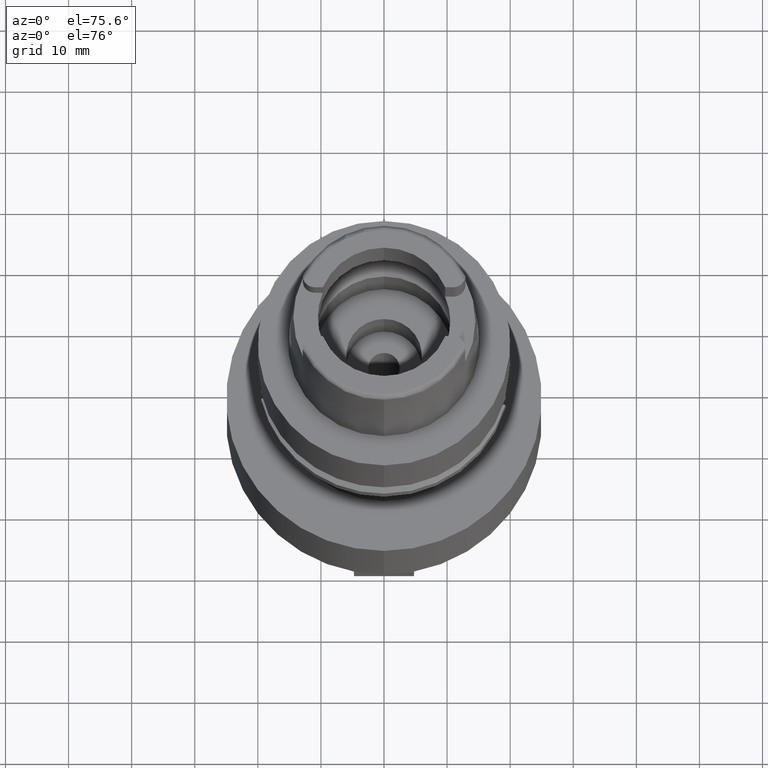
[diagram: clean part render]
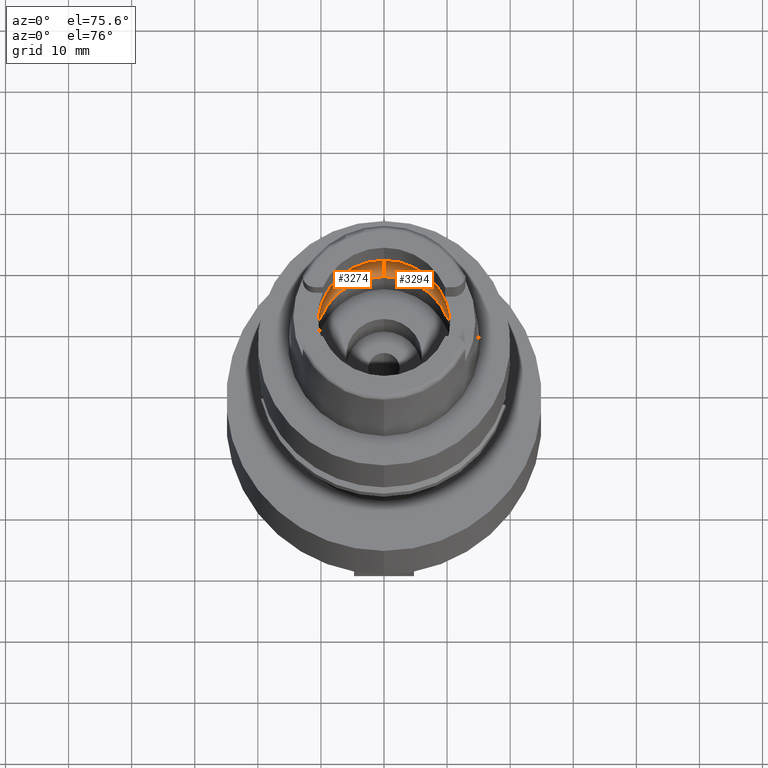
[diagram: same view with one multi-face feature highlighted, each face labeled with its STEP entity id]
A machine part, auxiliary view. The highlighted faces form ONE feature: a constant-radius fillet chain: 2 tangent blend faces with common blend radius 5 mm. The faces share edges in the B-rep.
Their STEP definitions:
[1] entity #3294 (Torus):
#590=CARTESIAN_POINT('',(0.E0,-7.75E0,3.933312163513E0));
#591=DIRECTION('',(-1.E0,0.E0,0.E0));
#592=DIRECTION('',(0.E0,-6.3E-1,-7.765951326142E-1));
#593=AXIS2_PLACEMENT_3D('',#590,#591,#592);
#606=CARTESIAN_POINT('',(1.274455357708E1,0.E0,3.7E0));
#607=CARTESIAN_POINT('',(1.274455357708E1,-1.164901899716E-1,3.7E0));
#608=CARTESIAN_POINT('',(1.274221290005E1,-3.492192328274E-1,3.717717317538E0));
#609=CARTESIAN_POINT('',(1.273125743228E1,-6.899600802084E-1,3.796706942599E0));
#610=CARTESIAN_POINT('',(1.271822602488E1,-9.055746597919E-1,3.882625582952E0));
#611=CARTESIAN_POINT('',(1.270998420980E1,-1.009356917308E0,3.933312163513E0));
#616=CARTESIAN_POINT('',(0.E0,0.E0,3.933312163513E0));
#617=DIRECTION('',(0.E0,0.E0,-1.E0));
#618=DIRECTION('',(9.968615066513E-1,-7.916524841634E-2,0.E0));
#619=AXIS2_PLACEMENT_3D('',#616,#617,#618);
#624=CARTESIAN_POINT('',(0.E0,0.E0,5.033650044217E-2));
#625=DIRECTION('',(0.E0,0.E0,1.E0));
#626=DIRECTION('',(0.E0,-1.E0,0.E0));
#627=AXIS2_PLACEMENT_3D('',#624,#625,#626);
#632=CARTESIAN_POINT('',(0.E0,7.75E0,3.933312163513E0));
#633=DIRECTION('',(1.E0,0.E0,0.E0));
#634=DIRECTION('',(0.E0,6.3E-1,-7.765951326142E-1));
#635=AXIS2_PLACEMENT_3D('',#632,#633,#634);
#640=CARTESIAN_POINT('',(0.E0,0.E0,3.933312163513E0));
#641=DIRECTION('',(0.E0,0.E0,-1.E0));
#642=DIRECTION('',(0.E0,1.E0,0.E0));
#643=AXIS2_PLACEMENT_3D('',#640,#641,#642);
#648=CARTESIAN_POINT('',(1.270998420980E1,1.009356917308E0,3.933312163513E0));
#649=CARTESIAN_POINT('',(1.271822610189E1,9.055736900758E-1,3.882625109349E0));
#650=CARTESIAN_POINT('',(1.273125753795E1,6.899576788429E-1,3.796706207139E0));
#651=CARTESIAN_POINT('',(1.274221290142E1,3.492185334599E-1,3.717717296960E0));
#652=CARTESIAN_POINT('',(1.274455357708E1,1.164899040263E-1,3.7E0));
#653=CARTESIAN_POINT('',(1.274455357708E1,0.E0,3.7E0));
#665=CARTESIAN_POINT('',(1.270998420980E1,-1.009356917308E0,3.933312163513E0));
#694=CARTESIAN_POINT('',(1.270998420980E1,1.009356917308E0,3.933312163513E0));
#2603=CARTESIAN_POINT('',(0.E0,-1.275E1,3.933312163513E0));
#2604=VERTEX_POINT('',#2603);
#2605=CARTESIAN_POINT('',(0.E0,1.275E1,3.933312163513E0));
#2606=VERTEX_POINT('',#2605);
#2611=VERTEX_POINT('',#665);
#2613=VERTEX_POINT('',#606);
#2614=VERTEX_POINT('',#694);
#2615=CARTESIAN_POINT('',(0.E0,1.09E1,5.033650044218E-2));
#2616=VERTEX_POINT('',#2615);
#2617=CARTESIAN_POINT('',(0.E0,-1.09E1,5.033650044217E-2));
#2618=VERTEX_POINT('',#2617);
#3275=CARTESIAN_POINT('',(0.E0,0.E0,3.933312163513E0));
#3276=DIRECTION('',(0.E0,0.E0,1.E0));
#3277=DIRECTION('',(0.E0,1.E0,0.E0));
#3278=AXIS2_PLACEMENT_3D('',#3275,#3276,#3277);
#3279=TOROIDAL_SURFACE('',#3278,7.75E0,5.E0);
#3281=ORIENTED_EDGE('',*,*,#3280,.T.);
#3283=ORIENTED_EDGE('',*,*,#3282,.T.);
#3284=ORIENTED_EDGE('',*,*,#3269,.F.);
#3286=ORIENTED_EDGE('',*,*,#3285,.T.);
#3287=ORIENTED_EDGE('',*,*,#3265,.T.);
#3289=ORIENTED_EDGE('',*,*,#3288,.T.);
#3291=ORIENTED_EDGE('',*,*,#3290,.T.);
#3292=EDGE_LOOP('',(#3281,#3283,#3284,#3286,#3287,#3289,#3291));
#3293=FACE_OUTER_BOUND('',#3292,.F.);
#594=CIRCLE('',#593,5.E0);
#612=B_SPLINE_CURVE_WITH_KNOTS('',3,(#606,#607,#608,#609,#610,#611),
.UNSPECIFIED.,.F.,.F.,(4,1,1,4),(0.E0,3.333333333333E-1,6.666666666667E-1,1.E0),
.UNSPECIFIED.);
#620=CIRCLE('',#619,1.275E1);
#628=CIRCLE('',#627,1.09E1);
#636=CIRCLE('',#635,5.E0);
#644=CIRCLE('',#643,1.275E1);
#654=B_SPLINE_CURVE_WITH_KNOTS('',3,(#648,#649,#650,#651,#652,#653),
.UNSPECIFIED.,.F.,.F.,(4,1,1,4),(0.E0,3.333333333333E-1,6.666666666667E-1,1.E0),
.UNSPECIFIED.);
#3265=EDGE_CURVE('',#2616,#2606,#636,.T.);
#3269=EDGE_CURVE('',#2618,#2604,#594,.T.);
#3280=EDGE_CURVE('',#2613,#2611,#612,.T.);
#3282=EDGE_CURVE('',#2611,#2604,#620,.T.);
#3285=EDGE_CURVE('',#2618,#2616,#628,.T.);
#3288=EDGE_CURVE('',#2606,#2614,#644,.T.);
#3290=EDGE_CURVE('',#2614,#2613,#654,.T.);
#3294=ADVANCED_FACE('',(#3293),#3279,.F.);
[2] entity #3274 (Torus):
#511=CARTESIAN_POINT('',(-1.270998420980E1,-1.009356917308E0,3.933312163513E0));
#554=CARTESIAN_POINT('',(-1.270998420980E1,-1.009356917308E0,3.933312163513E0));
#555=CARTESIAN_POINT('',(-1.271822604554E1,-9.055743997280E-1,
3.882625455939E0));
#556=CARTESIAN_POINT('',(-1.273125746366E1,-6.899594359199E-1,
3.796706725424E0));
#557=CARTESIAN_POINT('',(-1.274221291167E1,-3.492185594748E-1,
3.717717229425E0));
#558=CARTESIAN_POINT('',(-1.274455357708E1,-1.164899004163E-1,3.7E0));
#559=CARTESIAN_POINT('',(-1.274455357708E1,0.E0,3.7E0));
#564=CARTESIAN_POINT('',(-1.274455357708E1,0.E0,3.7E0));
#565=CARTESIAN_POINT('',(-1.274455357708E1,1.164901918602E-1,3.7E0));
#566=CARTESIAN_POINT('',(-1.274221288988E1,3.492192028097E-1,3.717717384548E0));
#567=CARTESIAN_POINT('',(-1.273125750676E1,6.899583193256E-1,3.796706423029E0));
#568=CARTESIAN_POINT('',(-1.271822608136E1,9.055739486035E-1,3.882625235613E0));
#569=CARTESIAN_POINT('',(-1.270998420980E1,1.009356917308E0,3.933312163513E0));
#574=CARTESIAN_POINT('',(0.E0,0.E0,3.933312163513E0));
#575=DIRECTION('',(0.E0,0.E0,-1.E0));
#576=DIRECTION('',(-9.968615066513E-1,7.916524841634E-2,0.E0));
#577=AXIS2_PLACEMENT_3D('',#574,#575,#576);
#582=CARTESIAN_POINT('',(0.E0,0.E0,5.033650044217E-2));
#583=DIRECTION('',(0.E0,0.E0,1.E0));
#584=DIRECTION('',(0.E0,1.E0,0.E0));
#585=AXIS2_PLACEMENT_3D('',#582,#583,#584);
#590=CARTESIAN_POINT('',(0.E0,-7.75E0,3.933312163513E0));
#591=DIRECTION('',(-1.E0,0.E0,0.E0));
#592=DIRECTION('',(0.E0,-6.3E-1,-7.765951326142E-1));
#593=AXIS2_PLACEMENT_3D('',#590,#591,#592);
#598=CARTESIAN_POINT('',(0.E0,0.E0,3.933312163513E0));
#599=DIRECTION('',(0.E0,0.E0,-1.E0));
#600=DIRECTION('',(0.E0,-1.E0,0.E0));
#601=AXIS2_PLACEMENT_3D('',#598,#599,#600);
#632=CARTESIAN_POINT('',(0.E0,7.75E0,3.933312163513E0));
#633=DIRECTION('',(1.E0,0.E0,0.E0));
#634=DIRECTION('',(0.E0,6.3E-1,-7.765951326142E-1));
#635=AXIS2_PLACEMENT_3D('',#632,#633,#634);
#2602=VERTEX_POINT('',#511);
#2603=CARTESIAN_POINT('',(0.E0,-1.275E1,3.933312163513E0));
#2604=VERTEX_POINT('',#2603);
#2605=CARTESIAN_POINT('',(0.E0,1.275E1,3.933312163513E0));
#2606=VERTEX_POINT('',#2605);
#2607=CARTESIAN_POINT('',(-1.270998420980E1,1.009356917308E0,3.933312163513E0));
#2608=VERTEX_POINT('',#2607);
#2609=CARTESIAN_POINT('',(-1.274455357708E1,0.E0,3.7E0));
#2610=VERTEX_POINT('',#2609);
#2615=CARTESIAN_POINT('',(0.E0,1.09E1,5.033650044218E-2));
#2616=VERTEX_POINT('',#2615);
#2617=CARTESIAN_POINT('',(0.E0,-1.09E1,5.033650044217E-2));
#2618=VERTEX_POINT('',#2617);
#3257=CARTESIAN_POINT('',(0.E0,0.E0,3.933312163513E0));
#3258=DIRECTION('',(0.E0,0.E0,1.E0));
#3259=DIRECTION('',(0.E0,1.E0,0.E0));
#3260=AXIS2_PLACEMENT_3D('',#3257,#3258,#3259);
#3261=TOROIDAL_SURFACE('',#3260,7.75E0,5.E0);
#3262=ORIENTED_EDGE('',*,*,#3238,.T.);
#3263=ORIENTED_EDGE('',*,*,#3249,.T.);
#3264=ORIENTED_EDGE('',*,*,#3220,.T.);
#3266=ORIENTED_EDGE('',*,*,#3265,.F.);
#3268=ORIENTED_EDGE('',*,*,#3267,.T.);
#3270=ORIENTED_EDGE('',*,*,#3269,.T.);
#3271=ORIENTED_EDGE('',*,*,#3213,.T.);
#3272=EDGE_LOOP('',(#3262,#3263,#3264,#3266,#3268,#3270,#3271));
#3273=FACE_OUTER_BOUND('',#3272,.F.);
#560=B_SPLINE_CURVE_WITH_KNOTS('',3,(#554,#555,#556,#557,#558,#559),
.UNSPECIFIED.,.F.,.F.,(4,1,1,4),(0.E0,3.333333333333E-1,6.666666666667E-1,1.E0),
.UNSPECIFIED.);
#570=B_SPLINE_CURVE_WITH_KNOTS('',3,(#564,#565,#566,#567,#568,#569),
.UNSPECIFIED.,.F.,.F.,(4,1,1,4),(0.E0,3.333333333333E-1,6.666666666667E-1,1.E0),
.UNSPECIFIED.);
#578=CIRCLE('',#577,1.275E1);
#586=CIRCLE('',#585,1.09E1);
#594=CIRCLE('',#593,5.E0);
#602=CIRCLE('',#601,1.275E1);
#636=CIRCLE('',#635,5.E0);
#3213=EDGE_CURVE('',#2604,#2602,#602,.T.);
#3220=EDGE_CURVE('',#2608,#2606,#578,.T.);
#3238=EDGE_CURVE('',#2602,#2610,#560,.T.);
#3249=EDGE_CURVE('',#2610,#2608,#570,.T.);
#3265=EDGE_CURVE('',#2616,#2606,#636,.T.);
#3267=EDGE_CURVE('',#2616,#2618,#586,.T.);
#3269=EDGE_CURVE('',#2618,#2604,#594,.T.);
#3274=ADVANCED_FACE('',(#3273),#3261,.F.);